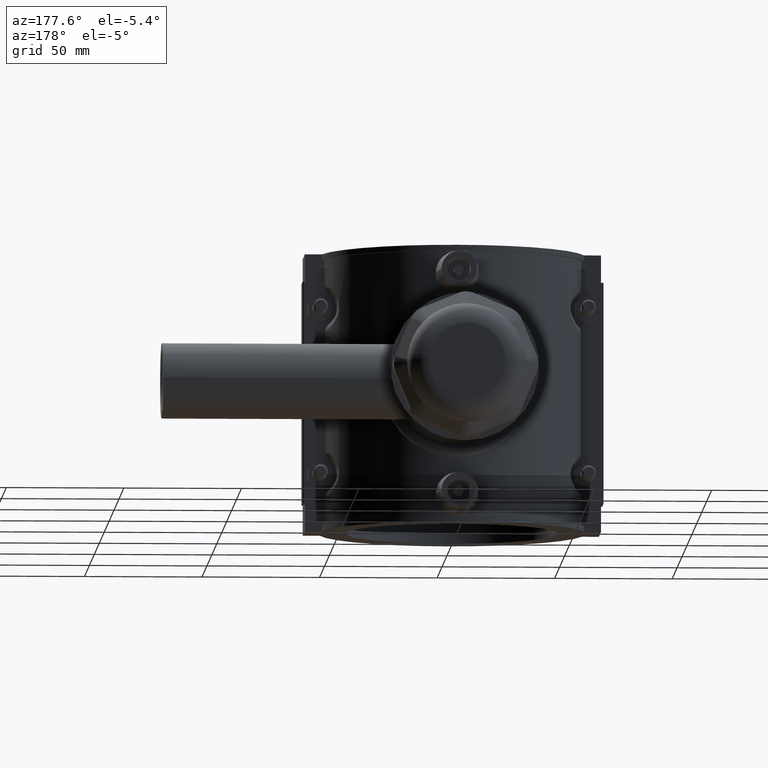
[diagram: clean part render]
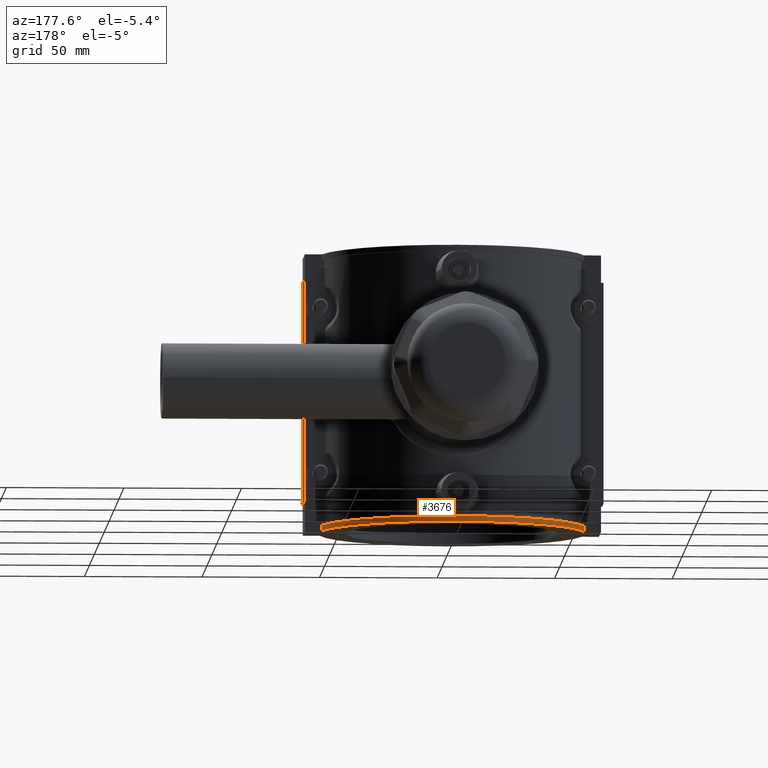
[diagram: same view with one face highlighted and labeled with its STEP entity id]
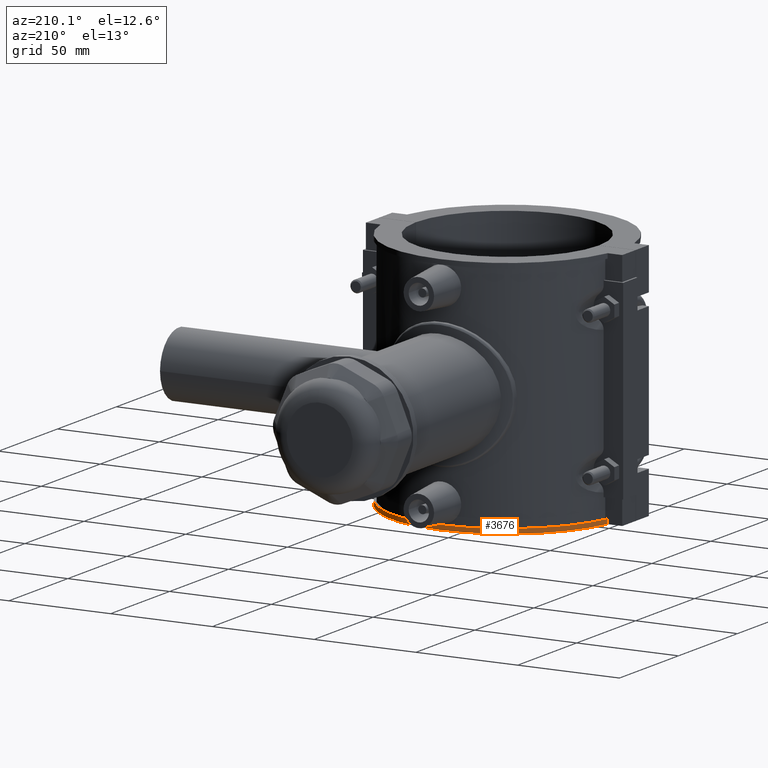
[diagram: same view with one face highlighted and labeled with its STEP entity id]
A machine part, auxiliary view. The second image highlights one B-rep face of the part: STEP entity #3676.
A second angle (auxiliary view) of the same face is appended — the face is thin or edge-on in the first view.
In plain terms, the highlighted cylindrical surface (partial cylindrical patch) has radius 56.916 mm, axis along (0, 0, -1).
Its self-contained STEP definition (entity closure, byte-faithful):
#109=LINE('',#6462,#408);
#110=LINE('',#6465,#409);
#408=VECTOR('',#4413,2.36);
#409=VECTOR('',#4416,2.36);
#821=CIRCLE('',#3925,56.916);
#822=CIRCLE('',#3926,56.916);
#1027=FACE_OUTER_BOUND('',#1262,.T.);
#1262=EDGE_LOOP('',(#2771,#2772,#2773,#2774));
#1668=VERTEX_POINT('',#6458);
#1669=VERTEX_POINT('',#6459);
#1670=VERTEX_POINT('',#6461);
#1671=VERTEX_POINT('',#6463);
#2081=EDGE_CURVE('',#1668,#1669,#821,.T.);
#2082=EDGE_CURVE('',#1670,#1669,#109,.T.);
#2083=EDGE_CURVE('',#1670,#1671,#822,.T.);
#2084=EDGE_CURVE('',#1668,#1671,#110,.T.);
#2771=ORIENTED_EDGE('',*,*,#2081,.T.);
#2772=ORIENTED_EDGE('',*,*,#2082,.F.);
#2773=ORIENTED_EDGE('',*,*,#2083,.T.);
#2774=ORIENTED_EDGE('',*,*,#2084,.F.);
#3566=CYLINDRICAL_SURFACE('',#3924,56.916);
#3676=ADVANCED_FACE('',(#1027),#3566,.T.);
#3924=AXIS2_PLACEMENT_3D('',#6457,#4409,#4410);
#3925=AXIS2_PLACEMENT_3D('',#6460,#4411,#4412);
#3926=AXIS2_PLACEMENT_3D('',#6464,#4414,#4415);
#4409=DIRECTION('center_axis',(0.,0.,-1.));
#4410=DIRECTION('ref_axis',(0.980270697011944,0.197659709044909,0.));
#4411=DIRECTION('center_axis',(0.,0.,1.));
#4412=DIRECTION('ref_axis',(0.980270697011944,0.197659709044909,0.));
#4413=DIRECTION('',(0.,0.,-1.));
#4414=DIRECTION('center_axis',(0.,0.,-1.));
#4415=DIRECTION('ref_axis',(0.980270697011944,0.197659709044909,0.));
#4416=DIRECTION('',(0.,0.,1.));
#6457=CARTESIAN_POINT('Origin',(0.,0.,-59.));
#6458=CARTESIAN_POINT('',(55.7930869911318,11.25,-59.));
#6459=CARTESIAN_POINT('',(-55.7930869911318,11.25,-59.));
#6460=CARTESIAN_POINT('Origin',(0.,0.,-59.));
#6461=CARTESIAN_POINT('',(-55.7930869911318,11.25,-56.64));
#6462=CARTESIAN_POINT('',(-55.7930869911318,11.25,-59.));
#6463=CARTESIAN_POINT('',(55.7930869911318,11.25,-56.64));
#6464=CARTESIAN_POINT('Origin',(0.,0.,-56.64));
#6465=CARTESIAN_POINT('',(55.7930869911318,11.25,-59.));